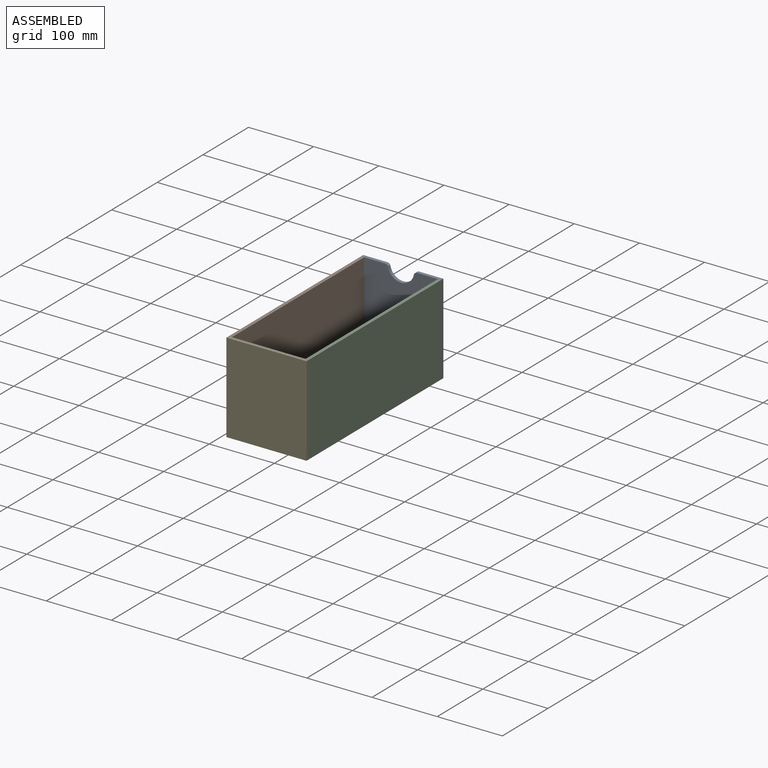
[diagram: assembled view]
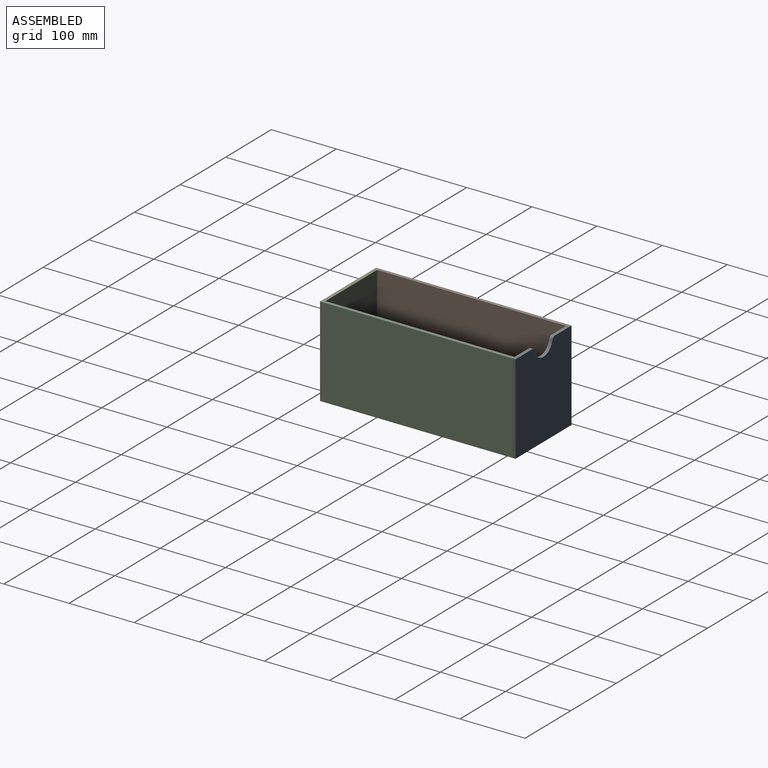
[diagram: assembled view, second angle]
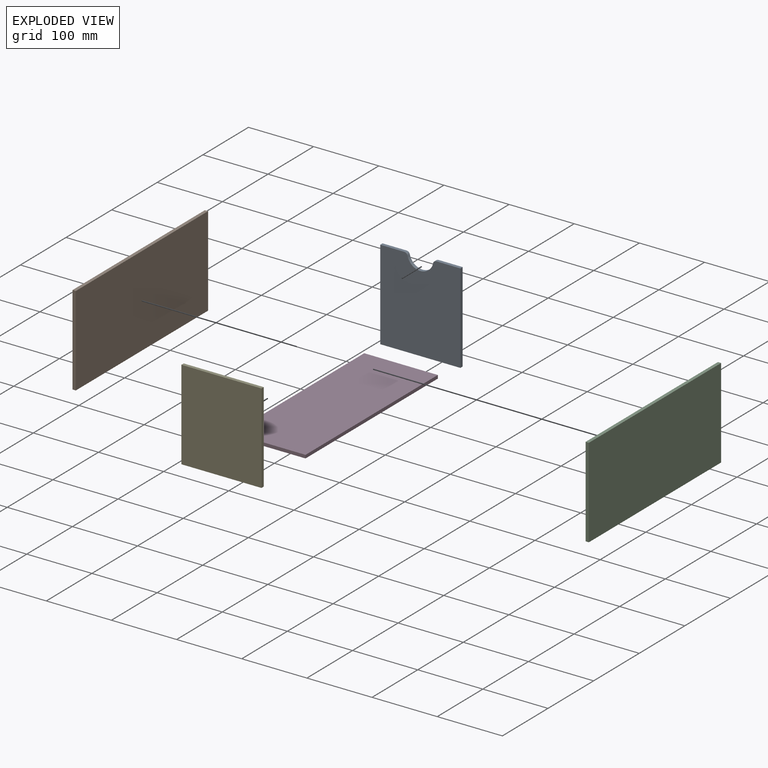
[diagram: exploded view]
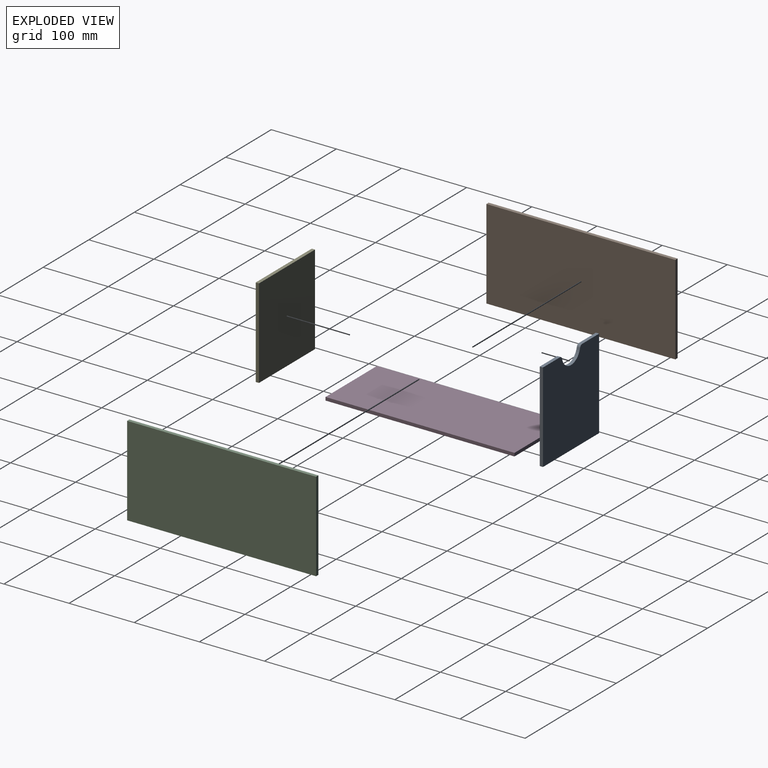
[diagram: exploded view, second angle]
ASSEMBLY  parts=5 mates=4
PART A: 10 faces, bbox 123x5x138 mm
  f0: plane 37.01x5mm, normal (0,0,1), area 185mm2, adj f2,f3,f6,f8
  f1: plane 37.01x5mm, normal (0,0,1), area 185mm2, adj f2,f4,f6,f9
  f2: plane 138x123mm, normal (0,-1,0), area 16338mm2, adj f0,f1,f3,f4,f5,f7,f8,f9
  f3: plane 138x5mm, normal (1,0,0), area 690mm2, adj f0,f2,f5,f6
  f4: plane 138x5mm, normal (-1,0,0), area 690mm2, adj f1,f2,f5,f6
  f5: plane 123x5mm, normal (0,0,-1), area 615mm2, adj f2,f3,f4,f6
  f6: plane 138x123mm, normal (0,1,0), area 16338mm2, adj f0,f1,f3,f4,f5,f7,f8,f9
  f7: cylinder r=20mm len=39.19mm, axis (0,-1,0), area 273.9mm2, adj f2,f6,f8,f9
  f8: cylinder r=5mm len=5mm, axis (0,-1,0), area 34.2mm2, adj f0,f2,f6,f7
  f9: cylinder r=5mm len=5mm, axis (0,-1,0), area 34.2mm2, adj f1,f2,f6,f7
PART B: 6 faces, bbox 5x290x138 mm
  f0: plane 138x5mm, normal (0,1,0), area 690mm2, adj f1,f3,f4,f5
  f1: plane 290x5mm, normal (0,0,1), area 1450mm2, adj f0,f2,f4,f5
  f2: plane 138x5mm, normal (0,-1,0), area 690mm2, adj f1,f3,f4,f5
  f3: plane 290x5mm, normal (0,0,-1), area 1450mm2, adj f0,f2,f4,f5
  f4: plane 290x138mm, normal (1,0,0), area 40020mm2, adj f0,f1,f2,f3
  f5: plane 290x138mm, normal (-1,0,0), area 40020mm2, adj f0,f1,f2,f3
PART C: same geometry as B
PART D: 6 faces, bbox 113x290x5 mm
  f0: plane 290x5mm, normal (1,0,0), area 1450mm2, adj f1,f3,f4,f5
  f1: plane 113x5mm, normal (0,1,0), area 565mm2, adj f0,f2,f4,f5
  f2: plane 290x5mm, normal (-1,0,0), area 1450mm2, adj f1,f3,f4,f5
  f3: plane 113x5mm, normal (0,-1,0), area 565mm2, adj f0,f2,f4,f5
  f4: plane 290x113mm, normal (0,0,1), area 32770mm2, adj f0,f1,f2,f3
  f5: plane 290x113mm, normal (0,0,-1), area 32770mm2, adj f0,f1,f2,f3
PART E: 6 faces, bbox 123x5x138 mm
  f0: plane 138x5mm, normal (1,0,0), area 690mm2, adj f1,f3,f4,f5
  f1: plane 123x5mm, normal (0,0,1), area 615mm2, adj f0,f2,f4,f5
  f2: plane 138x5mm, normal (-1,0,0), area 690mm2, adj f1,f3,f4,f5
  f3: plane 123x5mm, normal (0,0,-1), area 615mm2, adj f0,f2,f4,f5
  f4: plane 138x123mm, normal (0,-1,0), area 16974mm2, adj f0,f1,f2,f3
  f5: plane 138x123mm, normal (0,1,0), area 16974mm2, adj f0,f1,f2,f3
PLACE A t=(-26.09,219.84,148.33)mm
PLACE B t=(-87.59,69.84,148.33)mm
PLACE C t=(30.41,69.84,148.33)mm
PLACE D t=(-26.09,69.84,79.33)mm
PLACE E t=(-26.09,-75.16,148.33)mm
MATE fastened A.f2 <-> D.f1  axis (0,-1,0) through (-26.09,214.84,79.33)mm
MATE fastened C.f5 <-> D.f0  axis (-1,0,0) through (30.41,69.84,79.33)mm
MATE fastened B.f4 <-> D.f2  axis (1,0,0) through (-82.59,69.84,79.33)mm
MATE fastened E.f5 <-> D.f3  axis (0,1,0) through (-26.09,-75.16,79.33)mm
